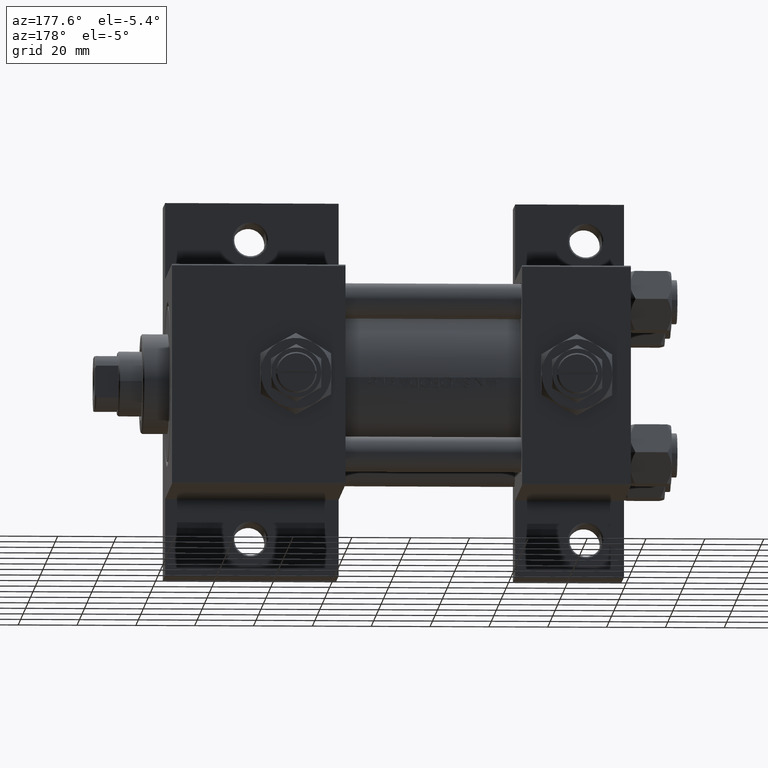
[diagram: clean part render]
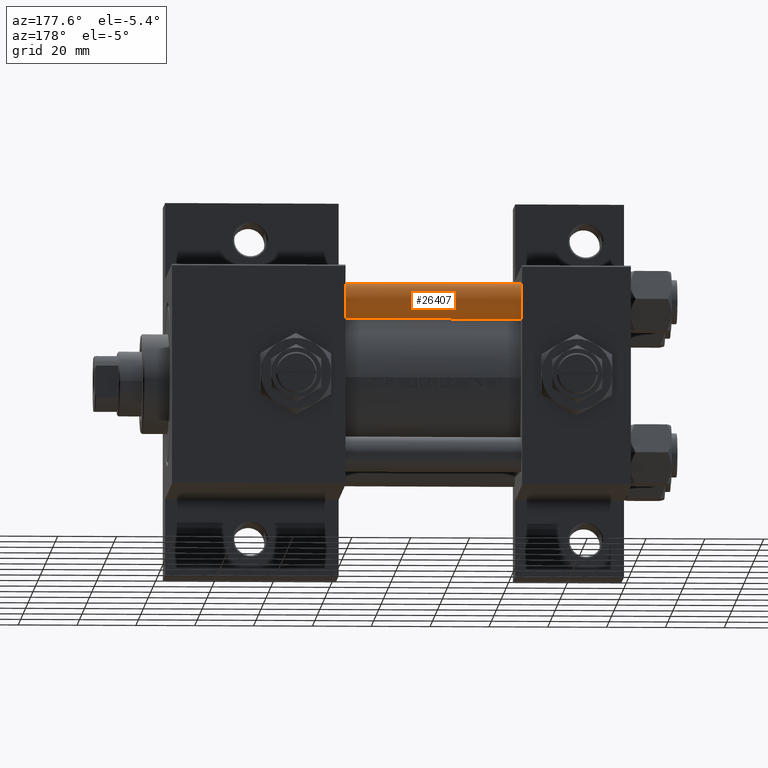
[diagram: same view with one face highlighted and labeled with its STEP entity id]
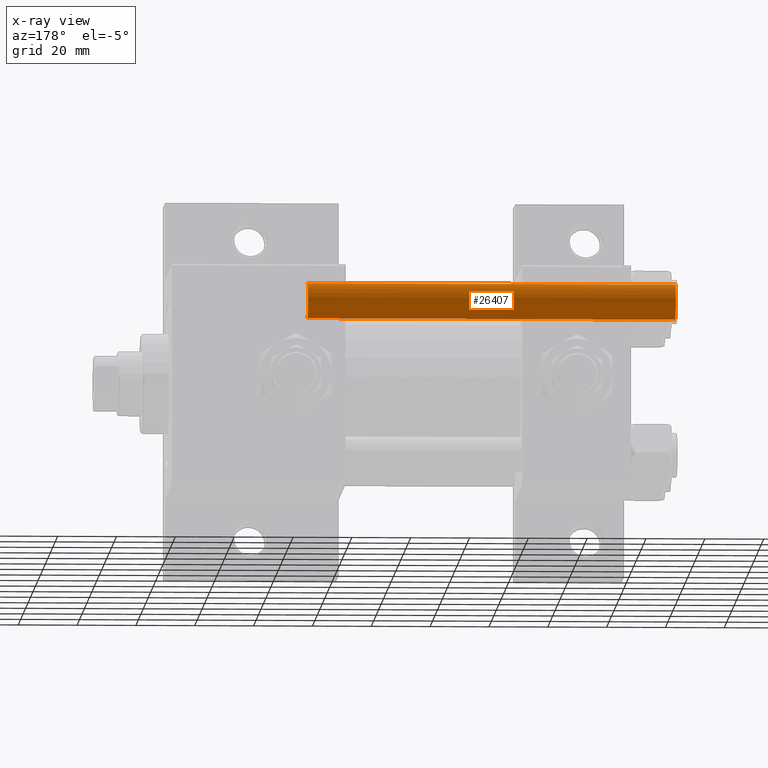
[diagram: x-ray of the same camera — body ghosted, the highlighted face saturated]
A machine part, auxiliary view. The second image highlights one B-rep face of the part: STEP entity #26407.
The next image is the same camera in x-ray: the body ghosted, the highlighted face saturated — about 0% of this face is hidden behind the body in this view.
In plain terms, the highlighted cylindrical surface (edge-blend (fillet) strip) has radius 6 mm, axis along (-1, -0, -0).
Its self-contained STEP definition (entity closure, byte-faithful):
#1383 = EDGE_CURVE ( 'NONE', #34968, #26334, #2074, .T. ) ;
#2074 = LINE ( 'NONE', #28585, #31467 ) ;
#2142 = FACE_OUTER_BOUND ( 'NONE', #36010, .T. ) ;
#2829 = EDGE_CURVE ( 'NONE', #33674, #19482, #39471, .T. ) ;
#3592 = CIRCLE ( 'NONE', #10706, 6.000000000000000888 ) ;
#5526 = DIRECTION ( 'NONE',  ( -0.000000000000000000, -0.000000000000000000, -1.000000000000000000 ) ) ;
#7143 = CARTESIAN_POINT ( 'NONE',  ( -6.000000000000000888, 0.000000000000000000, 125.5000000000000000 ) ) ;
#7226 = ORIENTED_EDGE ( 'NONE', *, *, #1383, .F. ) ;
#9569 = CARTESIAN_POINT ( 'NONE',  ( 6.000000000000000888, 7.347880794884120722E-16, 0.5000000000000004441 ) ) ;
#10706 = AXIS2_PLACEMENT_3D ( 'NONE', #35070, #16217, #35322 ) ;
#11335 = DIRECTION ( 'NONE',  ( -0.000000000000000000, -0.000000000000000000, 1.000000000000000000 ) ) ;
#11727 = VECTOR ( 'NONE', #5526, 1000.000000000000000 ) ;
#13082 = EDGE_CURVE ( 'NONE', #19482, #26334, #45168, .T. ) ;
#13293 = DIRECTION ( 'NONE',  ( -1.000000000000000000, 0.000000000000000000, 0.000000000000000000 ) ) ;
#15504 = DIRECTION ( 'NONE',  ( 1.000000000000000000, 0.000000000000000000, 0.000000000000000000 ) ) ;
#15909 = ORIENTED_EDGE ( 'NONE', *, *, #13082, .T. ) ;
#16217 = DIRECTION ( 'NONE',  ( 0.000000000000000000, 0.000000000000000000, -1.000000000000000000 ) ) ;
#17144 = CARTESIAN_POINT ( 'NONE',  ( 6.000000000000000888, 7.347880794884120722E-16, 126.0000000000000000 ) ) ;
#19482 = VERTEX_POINT ( 'NONE', #9569 ) ;
#20729 = DIRECTION ( 'NONE',  ( -0.000000000000000000, -0.000000000000000000, -1.000000000000000000 ) ) ;
#23851 = EDGE_CURVE ( 'NONE', #34968, #33674, #3592, .T. ) ;
#24452 = CYLINDRICAL_SURFACE ( 'NONE', #33708, 6.000000000000000888 ) ;
#24870 = DIRECTION ( 'NONE',  ( -0.000000000000000000, -0.000000000000000000, -1.000000000000000000 ) ) ;
#26334 = VERTEX_POINT ( 'NONE', #39328 ) ;
#26407 = ADVANCED_FACE ( 'NONE', ( #2142 ), #24452, .T. ) ;
#28585 = CARTESIAN_POINT ( 'NONE',  ( -6.000000000000000888, 0.000000000000000000, 126.0000000000000000 ) ) ;
#30868 = CARTESIAN_POINT ( 'NONE',  ( 0.000000000000000000, 0.000000000000000000, 0.5000000000000004441 ) ) ;
#31467 = VECTOR ( 'NONE', #24870, 1000.000000000000000 ) ;
#32480 = CARTESIAN_POINT ( 'NONE',  ( 6.000000000000000888, 7.347880794884120722E-16, 125.5000000000000000 ) ) ;
#33674 = VERTEX_POINT ( 'NONE', #32480 ) ;
#33708 = AXIS2_PLACEMENT_3D ( 'NONE', #39574, #20729, #13293 ) ;
#34968 = VERTEX_POINT ( 'NONE', #7143 ) ;
#35070 = CARTESIAN_POINT ( 'NONE',  ( 0.000000000000000000, 0.000000000000000000, 125.5000000000000000 ) ) ;
#35322 = DIRECTION ( 'NONE',  ( 1.000000000000000000, 0.000000000000000000, 0.000000000000000000 ) ) ;
#35827 = ORIENTED_EDGE ( 'NONE', *, *, #23851, .T. ) ;
#36010 = EDGE_LOOP ( 'NONE', ( #35827, #44494, #15909, #7226 ) ) ;
#39328 = CARTESIAN_POINT ( 'NONE',  ( -6.000000000000000888, 0.000000000000000000, 0.5000000000000004441 ) ) ;
#39471 = LINE ( 'NONE', #17144, #11727 ) ;
#39574 = CARTESIAN_POINT ( 'NONE',  ( 0.000000000000000000, 0.000000000000000000, 126.0000000000000000 ) ) ;
#44388 = AXIS2_PLACEMENT_3D ( 'NONE', #30868, #11335, #15504 ) ;
#44494 = ORIENTED_EDGE ( 'NONE', *, *, #2829, .T. ) ;
#45168 = CIRCLE ( 'NONE', #44388, 6.000000000000000888 ) ;